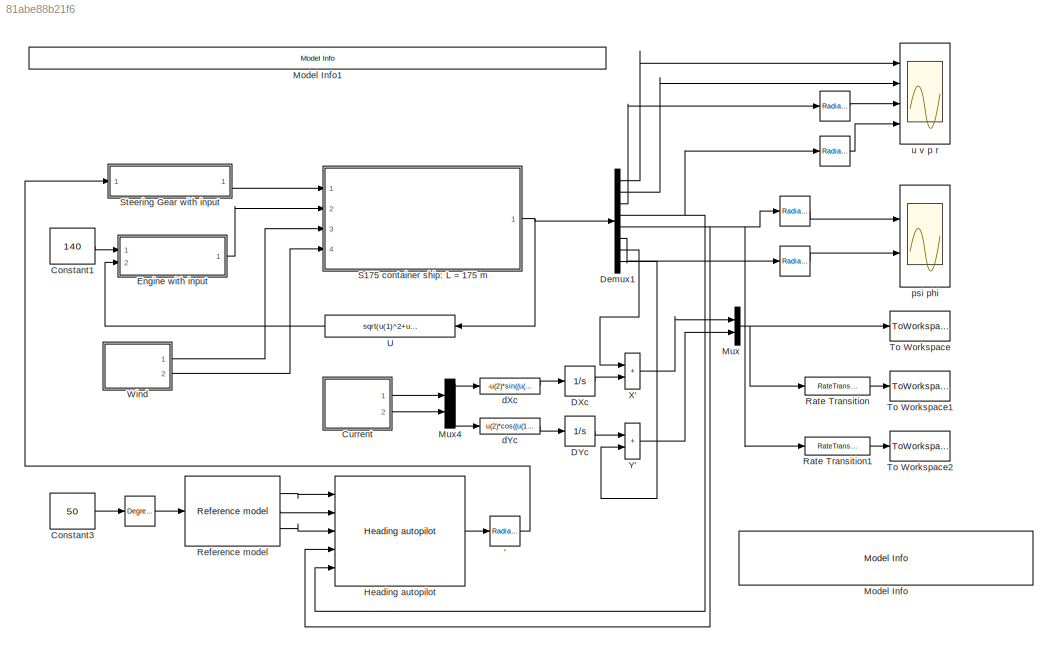
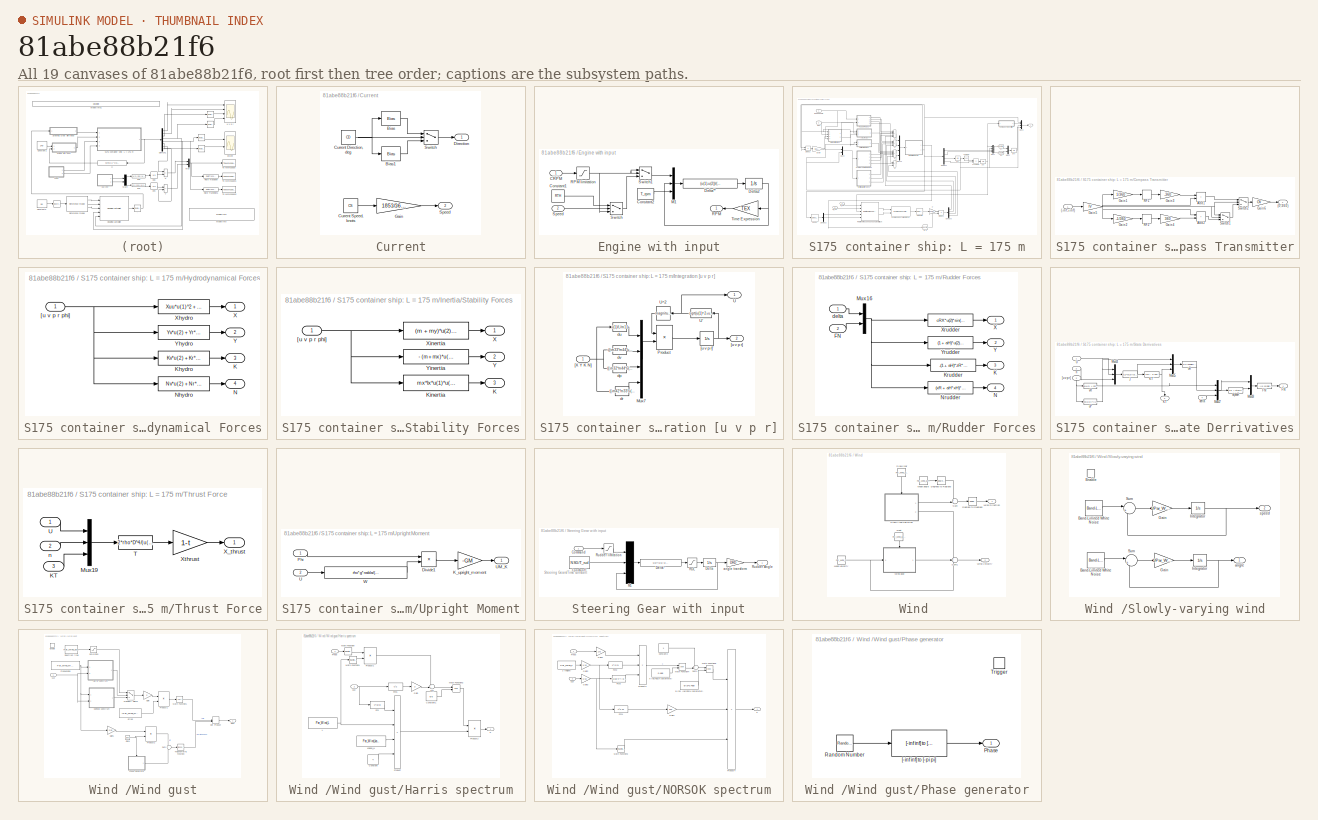
[diagram: thumbnail index - all 19 canvases of the model, root first then tree order]
MODEL slx_81abe88b21f6
KIND model
CONFIG AbsTol = auto
CONFIG EnableMultiTasking = on
CONFIG FixedStep = Auto
CONFIG InitFcn = dataContainer;
CONFIG MaxStep = auto
CONFIG MinStep = auto
CONFIG PreLoadFcn = TT=50;
CONFIG RelTol = 1e-10
CONFIG SampleTimeConstraint = Unconstrained
CONFIG SolverName = ode45
CONFIG StartTime = 0.0
CONFIG StopFcn = shipsOrient;
CONFIG StopTime = 500
BLOCK [Reference]      REF=simulink_extras/Transformations/Radians
to Degrees
  Ports = [1, 1]
  SourceBlock = simulink_extras/Transformations/Radians\nto Degrees
  SourceProductBaseCode = SL
  SourceType = RadiansToDegrees
BLOCK [Reference]       REF=simulink_extras/Transformations/Radians
to Degrees
  Ports = [1, 1]
  SourceBlock = simulink_extras/Transformations/Radians\nto Degrees
  SourceProductBaseCode = SL
  SourceType = RadiansToDegrees
BLOCK [Reference]        REF=simulink_extras/Transformations/Degrees to
Radians
  Ports = [1, 1]
  SourceBlock = simulink_extras/Transformations/Degrees to\nRadians
  SourceProductBaseCode = SL
  SourceType = DegreesToRadians
BLOCK [Reference]         REF=simulink_extras/Transformations/Radians
to Degrees
  Ports = [1, 1]
  SourceBlock = simulink_extras/Transformations/Radians\nto Degrees
  SourceProductBaseCode = SL
  SourceType = RadiansToDegrees
BLOCK [Reference]                   REF=simulink_extras/Transformations/Radians
to Degrees
  Ports = [1, 1]
  SourceBlock = simulink_extras/Transformations/Radians\nto Degrees
  SourceProductBaseCode = SL
  SourceType = RadiansToDegrees
BLOCK [Reference]                '  REF=simulink_extras/Transformations/Radians
to Degrees
  Ports = [1, 1]
  SourceBlock = simulink_extras/Transformations/Radians\nto Degrees
  SourceProductBaseCode = SL
  SourceType = RadiansToDegrees
BLOCK [Constant] Constant1
  Value = 140
BLOCK [Constant] Constant3
  Value = 50
BLOCK [SubSystem] Current
  AncestorBlock = Maneuvering/Environment/Current
  Ports = [0, 2]
  RequestExecContextInheritance = off
BLOCK [Bias] Current/Bias
  Bias = -180
  SaturateOnIntegerOverflow = off
BLOCK [Bias] Current/Bias1
  Bias = 180
  SaturateOnIntegerOverflow = off
BLOCK [Constant] Current/Current Direction, deg
  Value = CD
BLOCK [Constant] Current/Current Speed, knots
  Value = CS
BLOCK [Outport] Current/Direction
BLOCK [Gain] Current/Gain
  Gain = 1853/3600
BLOCK [Outport] Current/Speed
  Port = 2
BLOCK [Switch] Current/Switch
  InputSameDT = off
  SaturateOnIntegerOverflow = off
  Threshold = 180
BLOCK [Integrator] DXc
  Ports = [1, 1]
BLOCK [Integrator] DYc
  Ports = [1, 1]
BLOCK [Demux] Demux1
  Outputs = 8
  Ports = [1, 8]
BLOCK [SubSystem] Engine with input
  Ports = [2, 1]
  RequestExecContextInheritance = off
BLOCK [Inport] Engine with input/CRPM
BLOCK [Constant] Engine with input/Constant1
  Value = RTH
BLOCK [Constant] Engine with input/Constant2
  Value = T_rpm
BLOCK [Fcn] Engine with input/Delta**
  Expr = (u(1)-u(2))/(u(3)*60/u(2))
BLOCK [Integrator] Engine with input/Delta2
  InitialCondition = IRPM
  LimitOutput = on
  LowerSaturationLimit = MinRPM
  Ports = [1, 1]
  UpperSaturationLimit = MaxRPM
BLOCK [Mux] Engine with input/M1
  DisplayOption = bar
  Inputs = 3
  Ports = [3, 1]
BLOCK [Outport] Engine with input/RPM
BLOCK [Saturate] Engine with input/RPM limitation
  LowerLimit = MinRPM
  UpperLimit = MaxRPM
BLOCK [Inport] Engine with input/Speed
  Port = 2
BLOCK [Switch] Engine with input/Switch
  InputSameDT = off
  SaturateOnIntegerOverflow = off
  Threshold = RevV
BLOCK [Switch] Engine with input/Switch1
  InputSameDT = off
  SaturateOnIntegerOverflow = off
BLOCK [Gain] Engine with input/Time Expression
  Gain = TEX
BLOCK [Reference] Heading autopilot   REF=mssSimulink/Control/Autopilots/Heading autopilot
  Ports = [5, 1]
  SourceBlock = mssSimulink/Control/Autopilots/Heading autopilot
  SourceType = Course Autopilot
BLOCK [Reference] Model Info  REF=simulink/Model-Wide
Utilities/Model Info
  Ports = []
  SourceBlock = simulink/Model-Wide\nUtilities/Model Info
  SourceProductBaseCode = SL
  SourceType = CMBlock
BLOCK [Reference] Model Info1  REF=simulink/Model-Wide
Utilities/Model Info
  Ports = []
  SourceBlock = simulink/Model-Wide\nUtilities/Model Info
  SourceProductBaseCode = SL
  SourceType = CMBlock
BLOCK [Mux] Mux
  DisplayOption = bar
  Inputs = 2
  Ports = [2, 1]
BLOCK [Mux] Mux4
  DisplayOption = bar
  Inputs = 2
  Ports = [2, 1]
BLOCK [RateTransition] Rate Transition
  OutPortSampleTime = TT
BLOCK [RateTransition] Rate Transition1
  OutPortSampleTime = TT
BLOCK [Reference] Reference model   REF=mssSimulink/Guidance/Reference model
  Ports = [1, 3]
  SourceBlock = mssSimulink/Guidance/Reference model
  SourceType = 3rd-order reference model
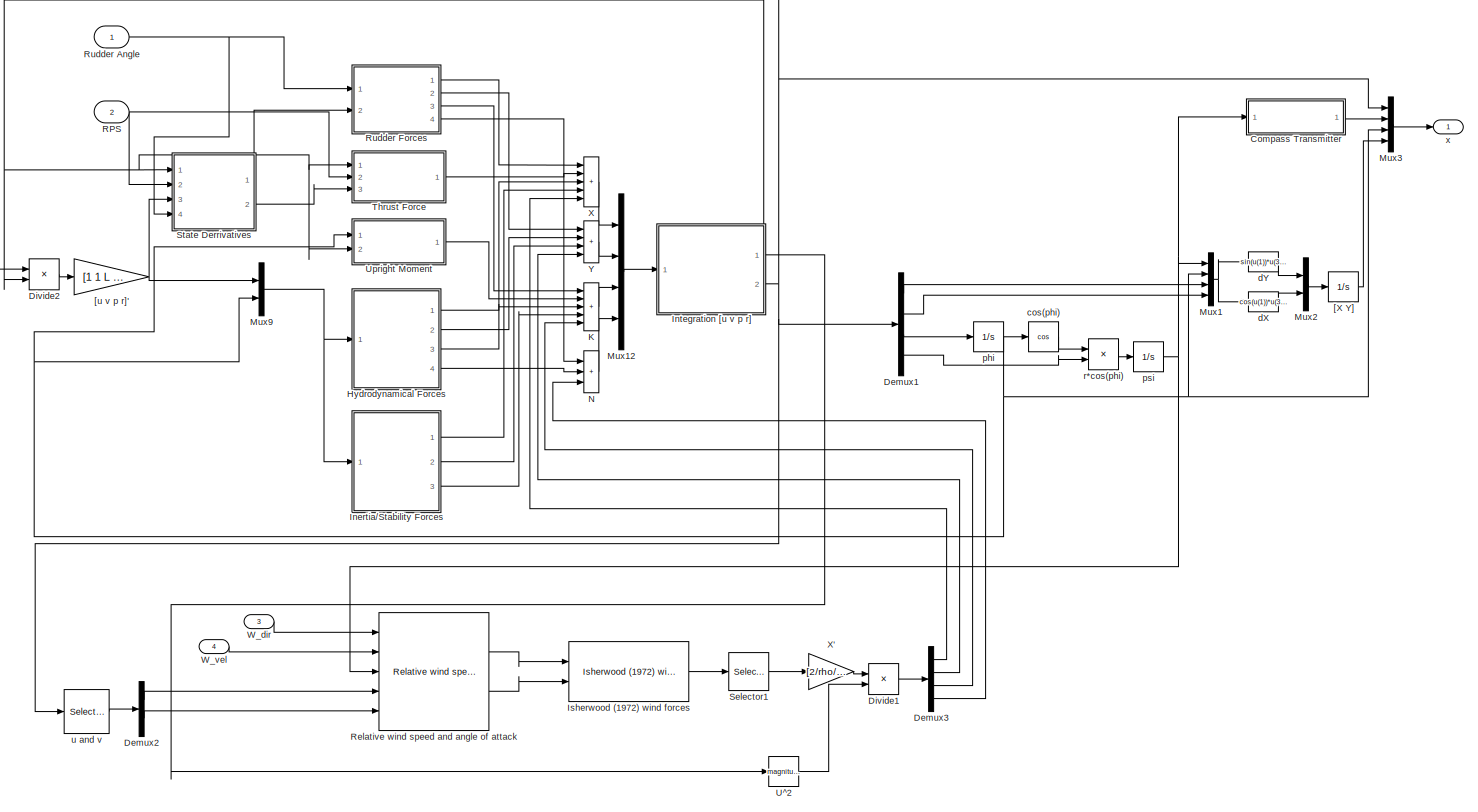
[diagram: S175 container ship: L = 175 m - part 1/1, most of the canvas]
BLOCK [SubSystem] S175 container ship: L = 175 m
  Ports = [4, 1]
  RequestExecContextInheritance = off
BLOCK [SubSystem] S175 container ship: L = 175 m/Compass Transmitter
  Ports = [1, 1]
  RequestExecContextInheritance = off
BLOCK [Inport] S175 container ship: L = 175 m/Compass Transmitter/(-inf;+inf)
BLOCK [Outport] S175 container ship: L = 175 m/Compass Transmitter/(0;360)
BLOCK [Sum] S175 container ship: L = 175 m/Compass Transmitter/Add1
  IconShape = rectangular
  Ports = [2, 1]
BLOCK [Sum] S175 container ship: L = 175 m/Compass Transmitter/Add2
  IconShape = rectangular
  Ports = [2, 1]
BLOCK [Gain] S175 container ship: L = 175 m/Compass Transmitter/Gain1
  Gain = 1/360
BLOCK [Gain] S175 container ship: L = 175 m/Compass Transmitter/Gain2
  Gain = -1/360
BLOCK [Gain] S175 container ship: L = 175 m/Compass Transmitter/Gain3
  Gain = -360
BLOCK [Gain] S175 container ship: L = 175 m/Compass Transmitter/Gain4
  Gain = 360
BLOCK [Gain] S175 container ship: L = 175 m/Compass Transmitter/Gain5
  Gain = IV
BLOCK [Gain] S175 container ship: L = 175 m/Compass Transmitter/Gain6
  Gain = OV
BLOCK [Rounding] S175 container ship: L = 175 m/Compass Transmitter/RF1
BLOCK [Rounding] S175 container ship: L = 175 m/Compass Transmitter/RF2
  Operator = ceil
BLOCK [Switch] S175 container ship: L = 175 m/Compass Transmitter/Switch1
  InputSameDT = off
  SaturateOnIntegerOverflow = off
BLOCK [Switch] S175 container ship: L = 175 m/Compass Transmitter/Switch2
  Criteria = u2 > Threshold
  InputSameDT = off
  SaturateOnIntegerOverflow = off
  Threshold = 360
BLOCK [Demux] S175 container ship: L = 175 m/Demux1
  Ports = [1, 4]
BLOCK [Demux] S175 container ship: L = 175 m/Demux2
  Outputs = 2
  Ports = [1, 2]
BLOCK [Demux] S175 container ship: L = 175 m/Demux3
  Ports = [1, 4]
BLOCK [Product] S175 container ship: L = 175 m/Divide1
  Inputs = */
  Ports = [2, 1]
BLOCK [Product] S175 container ship: L = 175 m/Divide2
  Inputs = */
  Ports = [2, 1]
BLOCK [SubSystem] S175 container ship: L = 175 m/Hydrodynamical Forces
  Ports = [1, 4]
  RequestExecContextInheritance = off
BLOCK [Outport] S175 container ship: L = 175 m/Hydrodynamical Forces/K
  Port = 3
BLOCK [Fcn] S175 container ship: L = 175 m/Hydrodynamical Forces/Khydro
  Expr = Kv*u(2) + Kr*u(4) + Kp*u(3) + Kphi*u(5) + Kvvv*u(2)^3 + Krrr*u(4)^3 + Kvvr*u(2)^2*u(4) + Kvrr*u(2)*u(4)^2 + Kvvphi*u(2)^2*u(5) + Kvphiphi*u(2)*u(5)^2 + Krrphi*u(4)^2*u(5) + Krphiphi*u(4)*u(5)^2
BLOCK [Outport] S175 container ship: L = 175 m/Hydrodynamical Forces/N
  Port = 4
BLOCK [Fcn] S175 container ship: L = 175 m/Hydrodynamical Forces/Nhydro
  Expr = Nv*u(2) + Nr*u(4) + Np*u(3) + Nphi*u(5) + Nvvv*u(2)^3 + Nrrr*u(4)^3 + Nvvr*u(2)^2*u(4) + Nvrr*u(2)*u(4)^2 + Nvvphi*u(2)^2*u(5) + Nvphiphi*u(2)*u(5)^2 + Nrrphi*u(4)^2*u(5) + Nrphiphi*u(4)*u(5)^2
BLOCK [Outport] S175 container ship: L = 175 m/Hydrodynamical Forces/X
BLOCK [Fcn] S175 container ship: L = 175 m/Hydrodynamical Forces/Xhydro
  Expr = Xuu*u(1)^2 +  Xvr*u(2)*u(4) + Xvv*u(2)^2 + Xrr*u(4)^2 + Xphiphi*u(5)^2
BLOCK [Outport] S175 container ship: L = 175 m/Hydrodynamical Forces/Y
  Port = 2
BLOCK [Fcn] S175 container ship: L = 175 m/Hydrodynamical Forces/Yhydro
  Expr = Yv*u(2) + Yr*u(4) + Yp*u(3) + Yphi*u(5) + Yvvv*u(2)^3 + Yrrr*u(4)^3 + Yvvr*u(2)^2*u(4) + Yvrr*u(2)*u(4)^2 + Yvvphi*u(2)^2*u(5) + Yvphiphi*u(2)*u(5)^2 + Yrrphi*u(4)^2*u(5) + Yrphiphi*u(4)*u(5)^2
BLOCK [Inport] S175 container ship: L = 175 m/Hydrodynamical Forces/[u v p r phi]
BLOCK [SubSystem] S175 container ship: L = 175 m/Inertia//Stability Forces
  Ports = [1, 3]
  RequestExecContextInheritance = off
BLOCK [Outport] S175 container ship: L = 175 m/Inertia//Stability Forces/K
  Port = 3
BLOCK [Fcn] S175 container ship: L = 175 m/Inertia//Stability Forces/Kinertia
  Expr = mx*lx*u(1)*u(4)
BLOCK [Outport] S175 container ship: L = 175 m/Inertia//Stability Forces/X
BLOCK [Fcn] S175 container ship: L = 175 m/Inertia//Stability Forces/Xinertia
  Expr = (m + my)*u(2)*u(4)
BLOCK [Outport] S175 container ship: L = 175 m/Inertia//Stability Forces/Y
  Port = 2
BLOCK [Fcn] S175 container ship: L = 175 m/Inertia//Stability Forces/Yinertia
  Expr = - (m + mx)*u(1)*u(4)
BLOCK [Inport] S175 container ship: L = 175 m/Inertia//Stability Forces/[u v p r phi]
BLOCK [SubSystem] S175 container ship: L = 175 m/Integration [u v p r]
  Ports = [1, 2]
  RequestExecContextInheritance = off
BLOCK [Mux] S175 container ship: L = 175 m/Integration [u v p r]/Mux7
  DisplayOption = bar
  Ports = [4, 1]
BLOCK [Product] S175 container ship: L = 175 m/Integration [u v p r]/Product
  Inputs = **
  Ports = [2, 1]
BLOCK [Outport] S175 container ship: L = 175 m/Integration [u v p r]/U
BLOCK [Fcn] S175 container ship: L = 175 m/Integration [u v p r]/U'
  Expr = sqrt(u(1)^2+u(2)^2)
  NameLocation = top
BLOCK [Math] S175 container ship: L = 175 m/Integration [u v p r]/U^2
  NameLocation = top
  Operator = magnitude^2
  Ports = [1, 1]
  SignedPower = on
BLOCK [Inport] S175 container ship: L = 175 m/Integration [u v p r]/[X Y K N]
BLOCK [Outport] S175 container ship: L = 175 m/Integration [u v p r]/[u v p r]
  Port = 2
BLOCK [Integrator] S175 container ship: L = 175 m/Integration [u v p r]/[u v p r]'
  InitialCondition = [IC(1:4)]
  Ports = [1, 1]
BLOCK [Fcn] S175 container ship: L = 175 m/Integration [u v p r]/dp
  Expr = ((-m32*m44*u(2)+u(3)*m22*m44-u(3)*m42^2+m32*m42*u(4))/detM)/L^2
BLOCK [Fcn] S175 container ship: L = 175 m/Integration [u v p r]/dr
  Expr = ((-m42*m33*u(2)+m32*m42*u(3)+u(4)*m22*m33-u(4)*m32^2)/detM)/L^2
BLOCK [Fcn] S175 container ship: L = 175 m/Integration [u v p r]/du
  Expr = u(1)/L/m11
BLOCK [Fcn] S175 container ship: L = 175 m/Integration [u v p r]/dv
  Expr = -((-m33*m44*u(2)+m32*m44*u(3)+m42*m33*u(4))/detM)/L
BLOCK [Reference] S175 container ship: L = 175 m/Isherwood (1972) wind forces    REF=mssSimulink/Environment/Wind/Isherwood (1972) wind forces
  Ports = [2, 1]
  SourceBlock = mssSimulink/Environment/Wind/Isherwood (1972) wind forces
  SourceType = Isherwood wind forces
BLOCK [Sum] S175 container ship: L = 175 m/K
  IconShape = rectangular
  Inputs = +++++
  Ports = [5, 1]
BLOCK [Mux] S175 container ship: L = 175 m/Mux1
  DisplayOption = bar
  Ports = [4, 1]
BLOCK [Mux] S175 container ship: L = 175 m/Mux12
  DisplayOption = bar
  Ports = [4, 1]
BLOCK [Mux] S175 container ship: L = 175 m/Mux2
  DisplayOption = bar
  Inputs = 2
  Ports = [2, 1]
BLOCK [Mux] S175 container ship: L = 175 m/Mux3
  DisplayOption = bar
  Ports = [4, 1]
BLOCK [Mux] S175 container ship: L = 175 m/Mux9
  DisplayOption = bar
  Inputs = 2
  Ports = [2, 1]
BLOCK [Sum] S175 container ship: L = 175 m/N
  IconShape = rectangular
  Inputs = +++
  Ports = [3, 1]
BLOCK [Inport] S175 container ship: L = 175 m/RPS
  Port = 2
BLOCK [Reference] S175 container ship: L = 175 m/Relative wind speed and angle of attack   REF=mssSimulink/Environment/Wind/Relative wind speed and angle of attack
  Ports = [5, 2]
  SourceBlock = mssSimulink/Environment/Wind/Relative wind speed and angle of attack
  SourceType = SubSystem
BLOCK [Inport] S175 container ship: L = 175 m/Rudder Angle
BLOCK [SubSystem] S175 container ship: L = 175 m/Rudder Forces
  Ports = [2, 4]
  RequestExecContextInheritance = off
BLOCK [Inport] S175 container ship: L = 175 m/Rudder Forces/FN
  Port = 2
BLOCK [Outport] S175 container ship: L = 175 m/Rudder Forces/K
  Port = 3
BLOCK [Fcn] S175 container ship: L = 175 m/Rudder Forces/Krudder
  Expr = -(1 + aH)*zR*u(2)*cos(u(1))
BLOCK [Mux] S175 container ship: L = 175 m/Rudder Forces/Mux16
  DisplayOption = bar
  Inputs = 2
  Ports = [2, 1]
BLOCK [Outport] S175 container ship: L = 175 m/Rudder Forces/N
  Port = 4
BLOCK [Fcn] S175 container ship: L = 175 m/Rudder Forces/Nrudder
  Expr = (xR + aH*xH)*u(2)*cos(u(1))
BLOCK [Outport] S175 container ship: L = 175 m/Rudder Forces/X
BLOCK [Fcn] S175 container ship: L = 175 m/Rudder Forces/Xrudder
  Expr = cRX*u(2)*sin(u(1))
BLOCK [Outport] S175 container ship: L = 175 m/Rudder Forces/Y
  Port = 2
BLOCK [Fcn] S175 container ship: L = 175 m/Rudder Forces/Yrudder
  Expr = (1 + aH)*u(2)*cos(u(1))
BLOCK [Inport] S175 container ship: L = 175 m/Rudder Forces/delta
BLOCK [Selector] S175 container ship: L = 175 m/Selector1
  IndexOptions = Index vector (dialog)
  Indices = [1 2 4 6]
  InputPortWidth = 6
  OutputSizes = 1
  Ports = [1, 1]
BLOCK [SubSystem] S175 container ship: L = 175 m/State Derrivatives
  Ports = [4, 2]
  RequestExecContextInheritance = off
BLOCK [Outport] S175 container ship: L = 175 m/State Derrivatives/FN
BLOCK [Fcn] S175 container ship: L = 175 m/State Derrivatives/FN'
  Expr = - ((6.13*Delta)/(Delta + 2.25))*(AR/L^2)*(u(1)^2 + u(2)^2)*sin(u(4))
BLOCK [Fcn] S175 container ship: L = 175 m/State Derrivatives/J
  Expr = u(1)*u(2)/(u(3)*D)
BLOCK [Outport] S175 container ship: L = 175 m/State Derrivatives/KT
  NameLocation = right
  Port = 2
BLOCK [Fcn] S175 container ship: L = 175 m/State Derrivatives/KT'
  Expr = 0.527 - 0.455*u
BLOCK [Mux] S175 container ship: L = 175 m/State Derrivatives/Mux14
  DisplayOption = bar
  Inputs = 3
  Ports = [3, 1]
BLOCK [Mux] S175 container ship: L = 175 m/State Derrivatives/Mux15
  DisplayOption = bar
  Inputs = 3
  Ports = [3, 1]
BLOCK [Mux] S175 container ship: L = 175 m/State Derrivatives/Mux17
  DisplayOption = bar
  Inputs = 3
  Ports = [3, 1]
BLOCK [Mux] S175 container ship: L = 175 m/State Derrivatives/Mux18
  DisplayOption = bar
  Inputs = 2
  Ports = [2, 1]
BLOCK [Inport] S175 container ship: L = 175 m/State Derrivatives/U
BLOCK [Inport] S175 container ship: L = 175 m/State Derrivatives/[u v p r]
  NameLocation = right
  Port = 3
BLOCK [Fcn] S175 container ship: L = 175 m/State Derrivatives/alphaR
  Expr = u(3) + atan(u(1)/u(2))
BLOCK [Inport] S175 container ship: L = 175 m/State Derrivatives/delta
  Port = 4
BLOCK [Inport] S175 container ship: L = 175 m/State Derrivatives/n
  Port = 2
BLOCK [Fcn] S175 container ship: L = 175 m/State Derrivatives/uP
  Expr = cos(u(2))*((1 - wp) + tau*((u(2) + xp*u(4))^2 + cpv*u(2) + cpr*u(4)))
BLOCK [Fcn] S175 container ship: L = 175 m/State Derrivatives/uR
  Expr = u(1)*epsilon*sqrt(1 + 8*kk*u(3)/(pi*u(2)^2))
BLOCK [Fcn] S175 container ship: L = 175 m/State Derrivatives/vR
  Expr = ga*u(2) + cRr*u(4) + cRrrr*u(4)^3 + cRrrv*u(4)^2*u(2)
BLOCK [SubSystem] S175 container ship: L = 175 m/Thrust Force
  Ports = [3, 1]
  RequestExecContextInheritance = off
BLOCK [Inport] S175 container ship: L = 175 m/Thrust Force/KT
  Port = 3
BLOCK [Mux] S175 container ship: L = 175 m/Thrust Force/Mux19
  DisplayOption = bar
  Inputs = 3
  Ports = [3, 1]
BLOCK [Fcn] S175 container ship: L = 175 m/Thrust Force/T
  Expr = 2*rho*D^4/(u(1)^2*L^2*rho)*u(3)*u(2)*abs(u(2))
BLOCK [Inport] S175 container ship: L = 175 m/Thrust Force/U
BLOCK [Outport] S175 container ship: L = 175 m/Thrust Force/X_thrust
BLOCK [Gain] S175 container ship: L = 175 m/Thrust Force/Xthrust
  Gain = 1-t
BLOCK [Inport] S175 container ship: L = 175 m/Thrust Force/n
  Port = 2
BLOCK [Math] S175 container ship: L = 175 m/U^2
  Operator = magnitude^2
  Ports = [1, 1]
  SignedPower = on
BLOCK [SubSystem] S175 container ship: L = 175 m/Upright Moment
  Ports = [2, 1]
  RequestExecContextInheritance = off
BLOCK [Product] S175 container ship: L = 175 m/Upright Moment/Divide1
  Inputs = **
  Ports = [2, 1]
BLOCK [Gain] S175 container ship: L = 175 m/Upright Moment/K_upright_moment
  Gain = -GM
BLOCK [Inport] S175 container ship: L = 175 m/Upright Moment/Phi
BLOCK [Inport] S175 container ship: L = 175 m/Upright Moment/U
  Port = 2
BLOCK [Outport] S175 container ship: L = 175 m/Upright Moment/UM_K
BLOCK [Fcn] S175 container ship: L = 175 m/Upright Moment/W
  Expr = rho*g*nabla/(rho*L^2*u^2/2)
BLOCK [Inport] S175 container ship: L = 175 m/W_dir
  Port = 3
BLOCK [Inport] S175 container ship: L = 175 m/W_vel
  Port = 4
BLOCK [Sum] S175 container ship: L = 175 m/X
  IconShape = rectangular
  Inputs = +++++
  Ports = [5, 1]
BLOCK [Gain] S175 container ship: L = 175 m/X'
  Gain = [2/rho/L^2 2/rho/L^2 2/rho/L^3 2/rho/L^3]
BLOCK [Sum] S175 container ship: L = 175 m/Y
  IconShape = rectangular
  Inputs = ++++
  Ports = [4, 1]
BLOCK [Integrator] S175 container ship: L = 175 m/[X Y]
  InitialCondition = [IC(7) IC(8)]
  Ports = [1, 1]
BLOCK [Gain] S175 container ship: L = 175 m/[u v p r]'
  Gain = [1 1 L L]
BLOCK [Trigonometry] S175 container ship: L = 175 m/cos(phi)
  Operator = cos
  Ports = [1, 1]
BLOCK [Fcn] S175 container ship: L = 175 m/dX
  Expr = cos(u(1))*u(3)-sin(u(1))*cos(u(2))*u(4)
BLOCK [Fcn] S175 container ship: L = 175 m/dY
  Expr = sin(u(1))*u(3)-cos(u(1))*cos(u(2))*u(4)
BLOCK [Integrator] S175 container ship: L = 175 m/phi
  InitialCondition = IC(6)
  Ports = [1, 1]
BLOCK [Integrator] S175 container ship: L = 175 m/psi
  InitialCondition = IC(5)
  Ports = [1, 1]
BLOCK [Product] S175 container ship: L = 175 m/r*cos(phi)
  Inputs = **
  Ports = [2, 1]
BLOCK [Selector] S175 container ship: L = 175 m/u and v
  IndexOptions = Index vector (dialog)
  Indices = [1 2]
  InputPortWidth = 4
  OutputSizes = 1
  Ports = [1, 1]
BLOCK [Outport] S175 container ship: L = 175 m/x
BLOCK [SubSystem] Steering Gear with input
  Ports = [1, 1]
  RequestExecContextInheritance = off
BLOCK [Inport] Steering Gear with input/Command
BLOCK [Constant] Steering Gear with input/Constant1
  Value = NSG/T_rud
BLOCK [Integrator] Steering Gear with input/Delta
  InitialCondition = IRud
  LimitOutput = on
  LowerSaturationLimit = -MR
  Ports = [1, 1]
  UpperSaturationLimit = MR
BLOCK [Fcn] Steering Gear with input/Delta*
  Expr = u(2)*(u(1)-u(3))
  SampleTime = ST
BLOCK [Mux] Steering Gear with input/M1
  DisplayOption = bar
  Inputs = 3
  Ports = [3, 1]
BLOCK [Saturate] Steering Gear with input/RDL
  LowerLimit = -MRS
  SampleTime = ST
  UpperLimit = MRS
BLOCK [Outport] Steering Gear with input/Rudder Angle
BLOCK [Saturate] Steering Gear with input/Rudder limitation
  LowerLimit = -MR
  SampleTime = ST
  UpperLimit = MR
BLOCK [Gain] Steering Gear with input/angle transform
  Gain = DRD
  SampleTime = ST
BLOCK [ToWorkspace] To Workspace
  MaxDataPoints = inf
  Ports = [1]
  SampleTime = -1
  VariableName = XY
BLOCK [ToWorkspace] To Workspace1
  MaxDataPoints = inf
  Ports = [1]
  SampleTime = TT
  VariableName = XY1
BLOCK [ToWorkspace] To Workspace2
  MaxDataPoints = inf
  Ports = [1]
  SampleTime = TT
  VariableName = K
BLOCK [Fcn] U
  Expr = sqrt(u(1)^2+u(2)^2)
  NameLocation = top
BLOCK [SubSystem] Wind 
  Ports = [0, 2]
  RequestExecContextInheritance = off
BLOCK [Reference] Wind /Degrees to Radians  REF=simulink_extras/Transformations/Degrees to
Radians
  Ports = [1, 1]
  SourceBlock = simulink_extras/Transformations/Degrees to\nRadians
  SourceProductBaseCode = SL
  SourceType = DegreesToRadians
BLOCK [Constant] Wind /Gust
  NameLocation = left
  Value = Par_Wind_gust
BLOCK [Constant] Wind /Mean angle
  Value = Par_Wind_angle
BLOCK [Constant] Wind /Mean velocity
  Value = Par_Wind_V
BLOCK [Reference] Wind /Radians to Degrees  REF=simulink_extras/Transformations/Radians
to Degrees
  Ports = [1, 1]
  SourceBlock = simulink_extras/Transformations/Radians\nto Degrees
  SourceProductBaseCode = SL
  SourceType = RadiansToDegrees
BLOCK [SubSystem] Wind /Slowly-varying wind
  Ports = [0, 2, 1]
  RequestExecContextInheritance = off
BLOCK [Reference] Wind /Slowly-varying wind/Band-Limited White Noise  REF=simulink/Sources/Band-Limited
White Noise
  Ports = [0, 1]
  SourceBlock = simulink/Sources/Band-Limited\nWhite Noise
  SourceProductBaseCode = SL
  SourceType = Band-Limited White Noise.
BLOCK [Reference] Wind /Slowly-varying wind/Band-Limited White Noise   REF=simulink/Sources/Band-Limited
White Noise
  Ports = [0, 1]
  SourceBlock = simulink/Sources/Band-Limited\nWhite Noise
  SourceProductBaseCode = SL
  SourceType = Band-Limited White Noise.
BLOCK [EnablePort] Wind /Slowly-varying wind/Enable
  Ports = []
BLOCK [Gain] Wind /Slowly-varying wind/Gain
  Gain = 1/Par_Wind_speed_T
  OutDataTypeStr = Inherit: Same as input
  ParamDataTypeStr = Inherit: Same as input
  SaturateOnIntegerOverflow = on
BLOCK [Gain] Wind /Slowly-varying wind/Gain 
  Gain = 1/Par_Wind_angle_T
  OutDataTypeStr = Inherit: Same as input
  ParamDataTypeStr = Inherit: Same as input
  SaturateOnIntegerOverflow = on
BLOCK [Integrator] Wind /Slowly-varying wind/Integrator
  LimitOutput = on
  LowerSaturationLimit = -Par_Wind_speed_rand_max
  Ports = [1, 1]
  UpperSaturationLimit = Par_Wind_speed_rand_max
BLOCK [Integrator] Wind /Slowly-varying wind/Integrator 
  LimitOutput = on
  LowerSaturationLimit = -Par_Wind_angle_rand_max
  Ports = [1, 1]
  UpperSaturationLimit = Par_Wind_angle_rand_max
BLOCK [Sum] Wind /Slowly-varying wind/Sum
  InputSameDT = on
  Inputs = |+-
  NameLocation = top
  OutDataTypeStr = Inherit: Same as first input
  Ports = [2, 1]
  SaturateOnIntegerOverflow = on
BLOCK [Sum] Wind /Slowly-varying wind/Sum       
  InputSameDT = on
  Inputs = |+-
  NameLocation = top
  OutDataTypeStr = Inherit: Same as first input
  Ports = [2, 1]
  SaturateOnIntegerOverflow = on
BLOCK [Outport] Wind /Slowly-varying wind/angle
  InitialOutput = 0
BLOCK [Outport] Wind /Slowly-varying wind/speed
  InitialOutput = 0
  Port = 2
BLOCK [Constant] Wind /Slowlyvar
  NameLocation = left
  Value = Par_Wind_slowlyvar
BLOCK [Sum] Wind /Sum
  Inputs = ++|
  Ports = [2, 1]
  SaturateOnIntegerOverflow = on
BLOCK [Sum] Wind /Sum1
  Inputs = +++
  Ports = [3, 1]
  SaturateOnIntegerOverflow = on
BLOCK [Outport] Wind /Wind Direction
BLOCK [Outport] Wind /Wind Velocity
  Port = 2
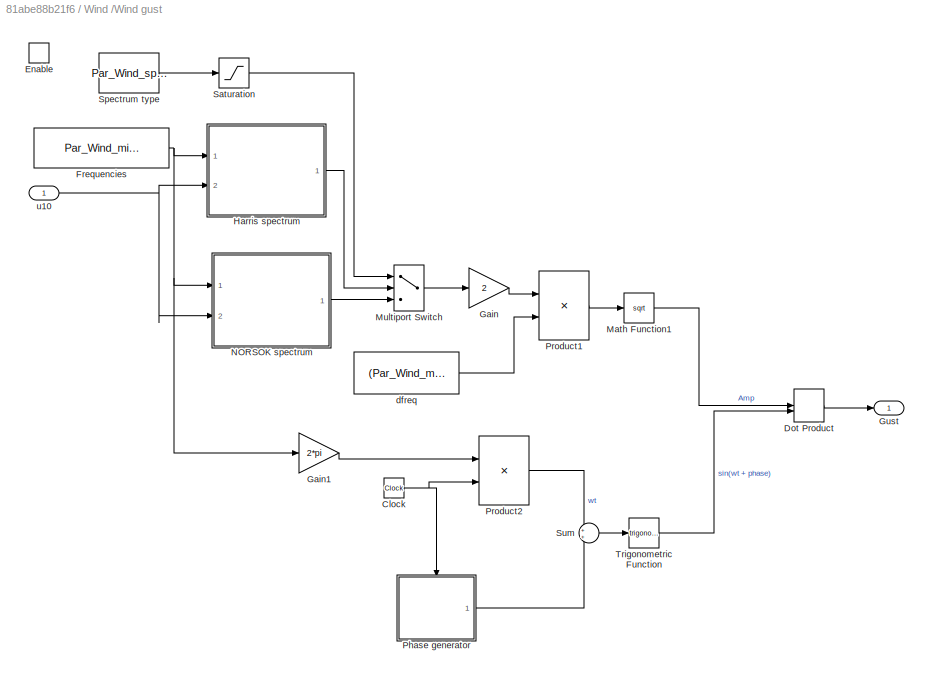
BLOCK [SubSystem] Wind /Wind gust
  Ports = [1, 1, 1]
  RequestExecContextInheritance = off
BLOCK [Clock] Wind /Wind gust/Clock
BLOCK [DotProduct] Wind /Wind gust/Dot Product
  OutDataTypeStr = Inherit: Inherit via internal rule
BLOCK [EnablePort] Wind /Wind gust/Enable
  Ports = []
BLOCK [Constant] Wind /Wind gust/Frequencies
  Value = Par_Wind_minfreq:(Par_Wind_maxfreq - Par_Wind_minfreq)/(Par_Wind_nfreq-1):Par_Wind_maxfreq
BLOCK [Gain] Wind /Wind gust/Gain
  Gain = 2
  OutDataTypeStr = Inherit: Same as input
  ParamDataTypeStr = Inherit: Same as input
  SaturateOnIntegerOverflow = on
BLOCK [Gain] Wind /Wind gust/Gain1
  Gain = 2*pi
  OutDataTypeStr = Inherit: Same as input
  ParamDataTypeStr = Inherit: Same as input
  SaturateOnIntegerOverflow = on
BLOCK [Outport] Wind /Wind gust/Gust
  InitialOutput = 0
BLOCK [SubSystem] Wind /Wind gust/Harris spectrum
  Ports = [2, 1]
  RequestExecContextInheritance = off
BLOCK [Constant] Wind /Wind gust/Harris spectrum/Constant
  Value = 4
BLOCK [Constant] Wind /Wind gust/Harris spectrum/Constant1
  Value = 5/6
BLOCK [Fcn] Wind /Wind gust/Harris spectrum/Fcn
  Expr = u^(8/3)
BLOCK [Fcn] Wind /Wind gust/Harris spectrum/Fcn1
  Expr = u^2
BLOCK [Inport] Wind /Wind gust/Harris spectrum/Freqs
BLOCK [Gain] Wind /Wind gust/Harris spectrum/Gain
  Gain = 2
  OutDataTypeStr = Inherit: Same as input
  ParamDataTypeStr = Inherit: Same as input
  SaturateOnIntegerOverflow = on
BLOCK [Constant] Wind /Wind gust/Harris spectrum/L
  Value = Par_Wind_L
BLOCK [Math] Wind /Wind gust/Harris spectrum/Math Function
  NameLocation = top
  Operator = magnitude^2
  Ports = [1, 1]
  SignedPower = on
BLOCK [Math] Wind /Wind gust/Harris spectrum/Math Function1
  Operator = magnitude^2
  Ports = [1, 1]
  SignedPower = on
BLOCK [Math] Wind /Wind gust/Harris spectrum/Math Function2
  Operator = pow
  Ports = [2, 1]
  SignedPower = on
BLOCK [Product] Wind /Wind gust/Harris spectrum/Product
  Inputs = 4
  OutDataTypeStr = Inherit: Same as first input
  Ports = [4, 1]
  SaturateOnIntegerOverflow = on
BLOCK [Product] Wind /Wind gust/Harris spectrum/Product1
  OutDataTypeStr = Inherit: Same as first input
  Ports = [2, 1]
  SaturateOnIntegerOverflow = on
BLOCK [Product] Wind /Wind gust/Harris spectrum/Product2
  Inputs = /*
  OutDataTypeStr = Inherit: Same as first input
  Ports = [2, 1]
  SaturateOnIntegerOverflow = on
BLOCK [Outport] Wind /Wind gust/Harris spectrum/S
BLOCK [Sum] Wind /Wind gust/Harris spectrum/Sum
  Inputs = ++|
  Ports = [2, 1]
  SaturateOnIntegerOverflow = on
BLOCK [Constant] Wind /Wind gust/Harris spectrum/kappa_H
  Value = Par_Wind_kappa_H
BLOCK [Inport] Wind /Wind gust/Harris spectrum/u10
  Port = 2
BLOCK [Math] Wind /Wind gust/Math Function1
  Operator = sqrt
  Ports = [1, 1]
  SignedPower = on
BLOCK [MultiPortSwitch] Wind /Wind gust/Multiport Switch
  InputSameDT = off
  Inputs = 2
  Ports = [3, 1]
  RndMeth = Nearest
BLOCK [SubSystem] Wind /Wind gust/NORSOK spectrum
  Ports = [2, 1]
  RequestExecContextInheritance = off
BLOCK [Constant] Wind /Wind gust/NORSOK spectrum/5//(3n) (NORSOK parameter)
  Value = 5/(3*0.468)
BLOCK [Constant] Wind /Wind gust/NORSOK spectrum/Constant2
BLOCK [Fcn] Wind /Wind gust/NORSOK spectrum/Fcn2
  Expr = u^(2/3)
  NameLocation = top
BLOCK [Fcn] Wind /Wind gust/NORSOK spectrum/Fcn3
  Expr = (u+1E-4)^(-3/4)
BLOCK [Fcn] Wind /Wind gust/NORSOK spectrum/Fcn4
  Expr = u^0.45
  NameLocation = top
BLOCK [Inport] Wind /Wind gust/NORSOK spectrum/Freqs
BLOCK [Gain] Wind /Wind gust/NORSOK spectrum/Gain1
  Gain = 172
  OutDataTypeStr = Inherit: Same as input
  ParamDataTypeStr = Inherit: Same as input
  SaturateOnIntegerOverflow = on
BLOCK [Gain] Wind /Wind gust/NORSOK spectrum/Gain2
  Gain = 1/10
  OutDataTypeStr = Inherit: Same as input
  ParamDataTypeStr = Inherit: Same as input
  SaturateOnIntegerOverflow = on
BLOCK [Gain] Wind /Wind gust/NORSOK spectrum/Gain3
  Gain = 1/10
  OutDataTypeStr = Inherit: Same as input
  ParamDataTypeStr = Inherit: Same as input
  SaturateOnIntegerOverflow = on
BLOCK [Gain] Wind /Wind gust/NORSOK spectrum/Gain4
  Gain = 320
  OutDataTypeStr = Inherit: Same as input
  ParamDataTypeStr = Inherit: Same as input
  SaturateOnIntegerOverflow = on
BLOCK [Math] Wind /Wind gust/NORSOK spectrum/Math Function3
  NameLocation = top
  Operator = magnitude^2
  Ports = [1, 1]
  SignedPower = on
BLOCK [Math] Wind /Wind gust/NORSOK spectrum/Math Function4
  Operator = pow
  Ports = [2, 1]
  SignedPower = on
BLOCK [Math] Wind /Wind gust/NORSOK spectrum/Math Function5
  Operator = pow
  Ports = [2, 1]
  SignedPower = on
BLOCK [Product] Wind /Wind gust/NORSOK spectrum/Product3
  Inputs = 3
  OutDataTypeStr = Inherit: Same as first input
  Ports = [3, 1]
  SaturateOnIntegerOverflow = on
BLOCK [Product] Wind /Wind gust/NORSOK spectrum/Product4
  Inputs = /**
  OutDataTypeStr = Inherit: Same as first input
  Ports = [3, 1]
  SaturateOnIntegerOverflow = on
BLOCK [Outport] Wind /Wind gust/NORSOK spectrum/S
BLOCK [Sum] Wind /Wind gust/NORSOK spectrum/Sum1
  Inputs = ++|
  Ports = [2, 1]
  SaturateOnIntegerOverflow = on
BLOCK [Constant] Wind /Wind gust/NORSOK spectrum/n (NORSOK parameter)
  Value = 0.468
BLOCK [Inport] Wind /Wind gust/NORSOK spectrum/u10
  Port = 2
BLOCK [Constant] Wind /Wind gust/NORSOK spectrum/z (height)
  Value = Par_Wind_z
BLOCK [SubSystem] Wind /Wind gust/Phase generator
  Ports = [0, 1, 0, 1]
  RequestExecContextInheritance = off
BLOCK [Outport] Wind /Wind gust/Phase generator/Phase
BLOCK [RandomNumber] Wind /Wind gust/Phase generator/Random Number
  Seed = Par_Wind_phase_seed*[1:Par_Wind_nfreq]
  Variance = 3
BLOCK [TriggerPort] Wind /Wind gust/Phase generator/Trigger
  Ports = []
  StatesWhenEnabling = held
  VariantControl = (inherit)
BLOCK [Reference] Wind /Wind gust/Phase generator/[-inf inf] to [-pi pi]   REF=mssSimulink/Utilities/Math Operations/[-inf inf] to [-pi pi]
  Ports = [1, 1]
  SourceBlock = mssSimulink/Utilities/Math Operations/[-inf inf] to [-pi pi]
  SourceType = [-inf inf] to [-pi pi]
BLOCK [Product] Wind /Wind gust/Product1
  OutDataTypeStr = Inherit: Same as first input
  Ports = [2, 1]
  SaturateOnIntegerOverflow = on
BLOCK [Product] Wind /Wind gust/Product2
  OutDataTypeStr = Inherit: Same as first input
  Ports = [2, 1]
  SaturateOnIntegerOverflow = on
BLOCK [Saturate] Wind /Wind gust/Saturation
  LowerLimit = 1
  UpperLimit = 2
BLOCK [Constant] Wind /Wind gust/Spectrum type
  Value = Par_Wind_spectrum_type
BLOCK [Sum] Wind /Wind gust/Sum
  Ports = [2, 1]
  SaturateOnIntegerOverflow = on
BLOCK [Trigonometry] Wind /Wind gust/Trigonometric Function
  Ports = [1, 1]
BLOCK [Constant] Wind /Wind gust/dfreq
  Value = (Par_Wind_maxfreq - Par_Wind_minfreq)/(Par_Wind_nfreq -1)
BLOCK [Inport] Wind /Wind gust/u10
BLOCK [Sum] X'
  IconShape = rectangular
  Ports = [2, 1]
  SampleTime = 1
BLOCK [Sum] Y'
  IconShape = rectangular
  Ports = [2, 1]
  SampleTime = 1
BLOCK [Fcn] dXc
  Expr = -u(2)*sin((u(1)+u(2))*pi/180)
BLOCK [Fcn] dYc
  Expr = u(2)*cos((u(1)+u(2))*pi/180)
BLOCK [Scope] psi phi
  Floating = off
  NumInputPorts = 2
  Ports = [2]
  ScopeSpecificationString = Simulink.scopes.TimeScopeBlockCfg('CurrentConfiguration', extmgr.ConfigurationSet(extmgr.Configuration('Core','General UI',true),extmgr.Configuration('Core','Source UI',true),extmgr.Configuration('Sources','WiredSimulink',true,'DataLoggingSaveFormat','StructureWithTime','DataLoggingDecimation','1','DataLoggingDecimateData',true),extmgr.Configuration('Visuals','Time Domain',true,'SerializedDisplays...<+2220ch>
BLOCK [Scope] u v p r
  Floating = off
  NumInputPorts = 4
  Ports = [4]
  ScopeSpecificationString = Simulink.scopes.TimeScopeBlockCfg('CurrentConfiguration', extmgr.ConfigurationSet(extmgr.Configuration('Core','General UI',true),extmgr.Configuration('Core','Source UI',true),extmgr.Configuration('Sources','WiredSimulink',true,'DataLoggingVariableName','ScopeData1','DataLoggingSaveFormat','StructureWithTime','DataLoggingDecimation','1','DataLoggingDecimateData',true),extmgr.Configuration('Visuals'...<+3644ch>
ANNOTATION Steering Gear with input: Steering Gears/Time constant
LINE                 :1 -> psi phi:2
LINE                ':1 -> Steering Gear with input:1
LINE       :1 -> u v p r:4
LINE      :1 -> Reference model :1
LINE     :1 -> u v p r:3
LINE    :1 -> psi phi:1
LINE Constant1:1 -> Engine with input:1
LINE Constant3:1 ->      :1
LINE Current:1 -> Mux4:1
LINE Current:2 -> Mux4:2
LINE DXc:1 -> X':2
LINE DYc:1 -> Y':1
LINE Demux1:1 -> u v p r:1
LINE Demux1:2 -> u v p r:2
LINE Demux1:3 ->     :1
NET Demux1:4 ->       :1, Heading autopilot :5
NET Demux1:5 ->    :1, Heading autopilot :4, Rate Transition1:1
LINE Demux1:6 ->                 :1
LINE Demux1:7 -> X':1
LINE Demux1:8 -> Y':2
LINE Engine with input/CRPM:1 -> Engine with input/RPM limitation:1
LINE Engine with input/Constant1:1 -> Engine with input/Switch:1
LINE Engine with input/Constant2:1 -> Engine with input/M1:3
LINE Engine with input/Delta**:1 -> Engine with input/Delta2:1
NET Engine with input/Delta2:1 -> Engine with input/M1:2, Engine with input/Time Expression:1
LINE Engine with input/M1:1 -> Engine with input/Delta**:1
NET Engine with input/RPM limitation:1 -> Engine with input/Switch1:1, Engine with input/Switch1:2, Engine with input/Switch:3
LINE Engine with input/Speed:1 -> Engine with input/Switch:2
LINE Engine with input/Switch1:1 -> Engine with input/M1:1
LINE Engine with input/Switch:1 -> Engine with input/Switch1:3
LINE Engine with input/Time Expression:1 -> Engine with input/RPM:1
LINE Engine with input:1 -> S175 container ship: L = 175 m:2
LINE Heading autopilot :1 ->                ':1
NET Mux4:1 -> dXc:1, dYc:1
NET Mux:1 -> Rate Transition:1, To Workspace:1
LINE Rate Transition1:1 -> To Workspace2:1
LINE Rate Transition:1 -> To Workspace1:1
LINE Reference model :1 -> Heading autopilot :1
LINE Reference model :2 -> Heading autopilot :2
LINE Reference model :3 -> Heading autopilot :3
LINE S175 container ship: L = 175 m/Compass Transmitter/(-inf;+inf):1 -> S175 container ship: L = 175 m/Compass Transmitter/Gain5:1
LINE S175 container ship: L = 175 m/Compass Transmitter/Add1:1 -> S175 container ship: L = 175 m/Compass Transmitter/Switch2:1
LINE S175 container ship: L = 175 m/Compass Transmitter/Add2:1 -> S175 container ship: L = 175 m/Compass Transmitter/Switch1:3
LINE S175 container ship: L = 175 m/Compass Transmitter/Gain1:1 -> S175 container ship: L = 175 m/Compass Transmitter/RF1:1
LINE S175 container ship: L = 175 m/Compass Transmitter/Gain2:1 -> S175 container ship: L = 175 m/Compass Transmitter/RF2:1
LINE S175 container ship: L = 175 m/Compass Transmitter/Gain3:1 -> S175 container ship: L = 175 m/Compass Transmitter/Add1:1
LINE S175 container ship: L = 175 m/Compass Transmitter/Gain4:1 -> S175 container ship: L = 175 m/Compass Transmitter/Add2:2
NET S175 container ship: L = 175 m/Compass Transmitter/Gain5:1 -> S175 container ship: L = 175 m/Compass Transmitter/Add1:2, S175 container ship: L = 175 m/Compass Transmitter/Add2:1, S175 container ship: L = 175 m/Compass Transmitter/Gain1:1, S175 container ship: L = 175 m/Compass Transmitter/Gain2:1, S175 container ship: L = 175 m/Compass Transmitter/Switch1:1, S175 container ship: L = 175 m/Compass Transmitter/Switch1:2, S175 container ship: L = 175 m/Compass Transmitter/Switch2:2
LINE S175 container ship: L = 175 m/Compass Transmitter/Gain6:1 -> S175 container ship: L = 175 m/Compass Transmitter/(0;360):1
LINE S175 container ship: L = 175 m/Compass Transmitter/RF1:1 -> S175 container ship: L = 175 m/Compass Transmitter/Gain3:1
LINE S175 container ship: L = 175 m/Compass Transmitter/RF2:1 -> S175 container ship: L = 175 m/Compass Transmitter/Gain4:1
LINE S175 container ship: L = 175 m/Compass Transmitter/Switch1:1 -> S175 container ship: L = 175 m/Compass Transmitter/Switch2:3
LINE S175 container ship: L = 175 m/Compass Transmitter/Switch2:1 -> S175 container ship: L = 175 m/Compass Transmitter/Gain6:1
LINE S175 container ship: L = 175 m/Compass Transmitter:1 -> S175 container ship: L = 175 m/Mux3:2
LINE S175 container ship: L = 175 m/Demux1:1 -> S175 container ship: L = 175 m/Mux1:3
LINE S175 container ship: L = 175 m/Demux1:2 -> S175 container ship: L = 175 m/Mux1:4
LINE S175 container ship: L = 175 m/Demux1:3 -> S175 container ship: L = 175 m/phi:1
LINE S175 container ship: L = 175 m/Demux1:4 -> S175 container ship: L = 175 m/r*cos(phi):2
LINE S175 container ship: L = 175 m/Demux2:1 -> S175 container ship: L = 175 m/Relative wind speed and angle of attack :4
LINE S175 container ship: L = 175 m/Demux2:2 -> S175 container ship: L = 175 m/Relative wind speed and angle of attack :5
LINE S175 container ship: L = 175 m/Demux3:1 -> S175 container ship: L = 175 m/X:5
LINE S175 container ship: L = 175 m/Demux3:2 -> S175 container ship: L = 175 m/Y:4
LINE S175 container ship: L = 175 m/Demux3:3 -> S175 container ship: L = 175 m/K:5
LINE S175 container ship: L = 175 m/Demux3:4 -> S175 container ship: L = 175 m/N:3
LINE S175 container ship: L = 175 m/Divide1:1 -> S175 container ship: L = 175 m/Demux3:1
LINE S175 container ship: L = 175 m/Divide2:1 -> S175 container ship: L = 175 m/[u v p r]':1
LINE S175 container ship: L = 175 m/Hydrodynamical Forces/Khydro:1 -> S175 container ship: L = 175 m/Hydrodynamical Forces/K:1
LINE S175 container ship: L = 175 m/Hydrodynamical Forces/Nhydro:1 -> S175 container ship: L = 175 m/Hydrodynamical Forces/N:1
LINE S175 container ship: L = 175 m/Hydrodynamical Forces/Xhydro:1 -> S175 container ship: L = 175 m/Hydrodynamical Forces/X:1
LINE S175 container ship: L = 175 m/Hydrodynamical Forces/Yhydro:1 -> S175 container ship: L = 175 m/Hydrodynamical Forces/Y:1
NET S175 container ship: L = 175 m/Hydrodynamical Forces/[u v p r phi]:1 -> S175 container ship: L = 175 m/Hydrodynamical Forces/Khydro:1, S175 container ship: L = 175 m/Hydrodynamical Forces/Nhydro:1, S175 container ship: L = 175 m/Hydrodynamical Forces/Xhydro:1, S175 container ship: L = 175 m/Hydrodynamical Forces/Yhydro:1
LINE S175 container ship: L = 175 m/Hydrodynamical Forces:1 -> S175 container ship: L = 175 m/X:3
LINE S175 container ship: L = 175 m/Hydrodynamical Forces:2 -> S175 container ship: L = 175 m/Y:2
LINE S175 container ship: L = 175 m/Hydrodynamical Forces:3 -> S175 container ship: L = 175 m/K:3
LINE S175 container ship: L = 175 m/Hydrodynamical Forces:4 -> S175 container ship: L = 175 m/N:2
LINE S175 container ship: L = 175 m/Inertia//Stability Forces/Kinertia:1 -> S175 container ship: L = 175 m/Inertia//Stability Forces/K:1
LINE S175 container ship: L = 175 m/Inertia//Stability Forces/Xinertia:1 -> S175 container ship: L = 175 m/Inertia//Stability Forces/X:1
LINE S175 container ship: L = 175 m/Inertia//Stability Forces/Yinertia:1 -> S175 container ship: L = 175 m/Inertia//Stability Forces/Y:1
NET S175 container ship: L = 175 m/Inertia//Stability Forces/[u v p r phi]:1 -> S175 container ship: L = 175 m/Inertia//Stability Forces/Kinertia:1, S175 container ship: L = 175 m/Inertia//Stability Forces/Xinertia:1, S175 container ship: L = 175 m/Inertia//Stability Forces/Yinertia:1
LINE S175 container ship: L = 175 m/Inertia//Stability Forces:1 -> S175 container ship: L = 175 m/X:4
LINE S175 container ship: L = 175 m/Inertia//Stability Forces:2 -> S175 container ship: L = 175 m/Y:3
LINE S175 container ship: L = 175 m/Inertia//Stability Forces:3 -> S175 container ship: L = 175 m/K:4
LINE S175 container ship: L = 175 m/Integration [u v p r]/Mux7:1 -> S175 container ship: L = 175 m/Integration [u v p r]/Product:2
LINE S175 container ship: L = 175 m/Integration [u v p r]/Product:1 -> S175 container ship: L = 175 m/Integration [u v p r]/[u v p r]':1
NET S175 container ship: L = 175 m/Integration [u v p r]/U':1 -> S175 container ship: L = 175 m/Integration [u v p r]/U:1, S175 container ship: L = 175 m/Integration [u v p r]/U^2:1
LINE S175 container ship: L = 175 m/Integration [u v p r]/U^2:1 -> S175 container ship: L = 175 m/Integration [u v p r]/Product:1
NET S175 container ship: L = 175 m/Integration [u v p r]/[X Y K N]:1 -> S175 container ship: L = 175 m/Integration [u v p r]/dp:1, S175 container ship: L = 175 m/Integration [u v p r]/dr:1, S175 container ship: L = 175 m/Integration [u v p r]/du:1, S175 container ship: L = 175 m/Integration [u v p r]/dv:1
NET S175 container ship: L = 175 m/Integration [u v p r]/[u v p r]':1 -> S175 container ship: L = 175 m/Integration [u v p r]/U':1, S175 container ship: L = 175 m/Integration [u v p r]/[u v p r]:1
LINE S175 container ship: L = 175 m/Integration [u v p r]/dp:1 -> S175 container ship: L = 175 m/Integration [u v p r]/Mux7:3
LINE S175 container ship: L = 175 m/Integration [u v p r]/dr:1 -> S175 container ship: L = 175 m/Integration [u v p r]/Mux7:4
LINE S175 container ship: L = 175 m/Integration [u v p r]/du:1 -> S175 container ship: L = 175 m/Integration [u v p r]/Mux7:1
LINE S175 container ship: L = 175 m/Integration [u v p r]/dv:1 -> S175 container ship: L = 175 m/Integration [u v p r]/Mux7:2
NET S175 container ship: L = 175 m/Integration [u v p r]:1 -> S175 container ship: L = 175 m/Divide2:2, S175 container ship: L = 175 m/State Derrivatives:1, S175 container ship: L = 175 m/Thrust Force:1, S175 container ship: L = 175 m/U^2:1, S175 container ship: L = 175 m/Upright Moment:2
NET S175 container ship: L = 175 m/Integration [u v p r]:2 -> S175 container ship: L = 175 m/Demux1:1, S175 container ship: L = 175 m/Divide2:1, S175 container ship: L = 175 m/Mux3:1, S175 container ship: L = 175 m/u and v:1
LINE S175 container ship: L = 175 m/Isherwood (1972) wind forces  :1 -> S175 container ship: L = 175 m/Selector1:1
LINE S175 container ship: L = 175 m/K:1 -> S175 container ship: L = 175 m/Mux12:3
LINE S175 container ship: L = 175 m/Mux12:1 -> S175 container ship: L = 175 m/Integration [u v p r]:1
NET S175 container ship: L = 175 m/Mux1:1 -> S175 container ship: L = 175 m/dX:1, S175 container ship: L = 175 m/dY:1
LINE S175 container ship: L = 175 m/Mux2:1 -> S175 container ship: L = 175 m/[X Y]:1
LINE S175 container ship: L = 175 m/Mux3:1 -> S175 container ship: L = 175 m/x:1
NET S175 container ship: L = 175 m/Mux9:1 -> S175 container ship: L = 175 m/Hydrodynamical Forces:1, S175 container ship: L = 175 m/Inertia//Stability Forces:1
LINE S175 container ship: L = 175 m/N:1 -> S175 container ship: L = 175 m/Mux12:4
NET S175 container ship: L = 175 m/RPS:1 -> S175 container ship: L = 175 m/State Derrivatives:2, S175 container ship: L = 175 m/Thrust Force:2
LINE S175 container ship: L = 175 m/Relative wind speed and angle of attack :1 -> S175 container ship: L = 175 m/Isherwood (1972) wind forces  :1
LINE S175 container ship: L = 175 m/Relative wind speed and angle of attack :2 -> S175 container ship: L = 175 m/Isherwood (1972) wind forces  :2
NET S175 container ship: L = 175 m/Rudder Angle:1 -> S175 container ship: L = 175 m/Rudder Forces:1, S175 container ship: L = 175 m/State Derrivatives:4
LINE S175 container ship: L = 175 m/Rudder Forces/FN:1 -> S175 container ship: L = 175 m/Rudder Forces/Mux16:2
LINE S175 container ship: L = 175 m/Rudder Forces/Krudder:1 -> S175 container ship: L = 175 m/Rudder Forces/K:1
NET S175 container ship: L = 175 m/Rudder Forces/Mux16:1 -> S175 container ship: L = 175 m/Rudder Forces/Krudder:1, S175 container ship: L = 175 m/Rudder Forces/Nrudder:1, S175 container ship: L = 175 m/Rudder Forces/Xrudder:1, S175 container ship: L = 175 m/Rudder Forces/Yrudder:1
LINE S175 container ship: L = 175 m/Rudder Forces/Nrudder:1 -> S175 container ship: L = 175 m/Rudder Forces/N:1
LINE S175 container ship: L = 175 m/Rudder Forces/Xrudder:1 -> S175 container ship: L = 175 m/Rudder Forces/X:1
LINE S175 container ship: L = 175 m/Rudder Forces/Yrudder:1 -> S175 container ship: L = 175 m/Rudder Forces/Y:1
LINE S175 container ship: L = 175 m/Rudder Forces/delta:1 -> S175 container ship: L = 175 m/Rudder Forces/Mux16:1
LINE S175 container ship: L = 175 m/Rudder Forces:1 -> S175 container ship: L = 175 m/X:1
LINE S175 container ship: L = 175 m/Rudder Forces:2 -> S175 container ship: L = 175 m/Y:1
LINE S175 container ship: L = 175 m/Rudder Forces:3 -> S175 container ship: L = 175 m/K:1
LINE S175 container ship: L = 175 m/Rudder Forces:4 -> S175 container ship: L = 175 m/N:1
LINE S175 container ship: L = 175 m/Selector1:1 -> S175 container ship: L = 175 m/X':1
LINE S175 container ship: L = 175 m/State Derrivatives/FN':1 -> S175 container ship: L = 175 m/State Derrivatives/FN:1
NET S175 container ship: L = 175 m/State Derrivatives/J:1 -> S175 container ship: L = 175 m/State Derrivatives/KT':1, S175 container ship: L = 175 m/State Derrivatives/Mux15:2
NET S175 container ship: L = 175 m/State Derrivatives/KT':1 -> S175 container ship: L = 175 m/State Derrivatives/KT:1, S175 container ship: L = 175 m/State Derrivatives/Mux15:3
LINE S175 container ship: L = 175 m/State Derrivatives/Mux14:1 -> S175 container ship: L = 175 m/State Derrivatives/J:1
LINE S175 container ship: L = 175 m/State Derrivatives/Mux15:1 -> S175 container ship: L = 175 m/State Derrivatives/uR:1
NET S175 container ship: L = 175 m/State Derrivatives/Mux17:1 -> S175 container ship: L = 175 m/State Derrivatives/Mux18:1, S175 container ship: L = 175 m/State Derrivatives/alphaR:1
LINE S175 container ship: L = 175 m/State Derrivatives/Mux18:1 -> S175 container ship: L = 175 m/State Derrivatives/FN':1
LINE S175 container ship: L = 175 m/State Derrivatives/U:1 -> S175 container ship: L = 175 m/State Derrivatives/Mux14:2
NET S175 container ship: L = 175 m/State Derrivatives/[u v p r]:1 -> S175 container ship: L = 175 m/State Derrivatives/uP:1, S175 container ship: L = 175 m/State Derrivatives/vR:1
LINE S175 container ship: L = 175 m/State Derrivatives/alphaR:1 -> S175 container ship: L = 175 m/State Derrivatives/Mux18:2
LINE S175 container ship: L = 175 m/State Derrivatives/delta:1 -> S175 container ship: L = 175 m/State Derrivatives/Mux17:3
LINE S175 container ship: L = 175 m/State Derrivatives/n:1 -> S175 container ship: L = 175 m/State Derrivatives/Mux14:3
NET S175 container ship: L = 175 m/State Derrivatives/uP:1 -> S175 container ship: L = 175 m/State Derrivatives/Mux14:1, S175 container ship: L = 175 m/State Derrivatives/Mux15:1
LINE S175 container ship: L = 175 m/State Derrivatives/uR:1 -> S175 container ship: L = 175 m/State Derrivatives/Mux17:2
LINE S175 container ship: L = 175 m/State Derrivatives/vR:1 -> S175 container ship: L = 175 m/State Derrivatives/Mux17:1
LINE S175 container ship: L = 175 m/State Derrivatives:1 -> S175 container ship: L = 175 m/Rudder Forces:2
LINE S175 container ship: L = 175 m/State Derrivatives:2 -> S175 container ship: L = 175 m/Thrust Force:3
LINE S175 container ship: L = 175 m/Thrust Force/KT:1 -> S175 container ship: L = 175 m/Thrust Force/Mux19:3
LINE S175 container ship: L = 175 m/Thrust Force/Mux19:1 -> S175 container ship: L = 175 m/Thrust Force/T:1
LINE S175 container ship: L = 175 m/Thrust Force/T:1 -> S175 container ship: L = 175 m/Thrust Force/Xthrust:1
LINE S175 container ship: L = 175 m/Thrust Force/U:1 -> S175 container ship: L = 175 m/Thrust Force/Mux19:1
LINE S175 container ship: L = 175 m/Thrust Force/Xthrust:1 -> S175 container ship: L = 175 m/Thrust Force/X_thrust:1
LINE S175 container ship: L = 175 m/Thrust Force/n:1 -> S175 container ship: L = 175 m/Thrust Force/Mux19:2
LINE S175 container ship: L = 175 m/Thrust Force:1 -> S175 container ship: L = 175 m/X:2
LINE S175 container ship: L = 175 m/U^2:1 -> S175 container ship: L = 175 m/Divide1:2
LINE S175 container ship: L = 175 m/Upright Moment/Divide1:1 -> S175 container ship: L = 175 m/Upright Moment/K_upright_moment:1
LINE S175 container ship: L = 175 m/Upright Moment/K_upright_moment:1 -> S175 container ship: L = 175 m/Upright Moment/UM_K:1
LINE S175 container ship: L = 175 m/Upright Moment/Phi:1 -> S175 container ship: L = 175 m/Upright Moment/Divide1:1
LINE S175 container ship: L = 175 m/Upright Moment/U:1 -> S175 container ship: L = 175 m/Upright Moment/W:1
LINE S175 container ship: L = 175 m/Upright Moment/W:1 -> S175 container ship: L = 175 m/Upright Moment/Divide1:2
LINE S175 container ship: L = 175 m/Upright Moment:1 -> S175 container ship: L = 175 m/K:2
LINE S175 container ship: L = 175 m/W_dir:1 -> S175 container ship: L = 175 m/Relative wind speed and angle of attack :1
LINE S175 container ship: L = 175 m/W_vel:1 -> S175 container ship: L = 175 m/Relative wind speed and angle of attack :2
LINE S175 container ship: L = 175 m/X':1 -> S175 container ship: L = 175 m/Divide1:1
LINE S175 container ship: L = 175 m/X:1 -> S175 container ship: L = 175 m/Mux12:1
LINE S175 container ship: L = 175 m/Y:1 -> S175 container ship: L = 175 m/Mux12:2
LINE S175 container ship: L = 175 m/[X Y]:1 -> S175 container ship: L = 175 m/Mux3:4
NET S175 container ship: L = 175 m/[u v p r]':1 -> S175 container ship: L = 175 m/Mux9:1, S175 container ship: L = 175 m/State Derrivatives:3
LINE S175 container ship: L = 175 m/cos(phi):1 -> S175 container ship: L = 175 m/r*cos(phi):1
LINE S175 container ship: L = 175 m/dX:1 -> S175 container ship: L = 175 m/Mux2:2
LINE S175 container ship: L = 175 m/dY:1 -> S175 container ship: L = 175 m/Mux2:1
NET S175 container ship: L = 175 m/phi:1 -> S175 container ship: L = 175 m/Mux1:2, S175 container ship: L = 175 m/Mux3:3, S175 container ship: L = 175 m/Mux9:2, S175 container ship: L = 175 m/Upright Moment:1, S175 container ship: L = 175 m/cos(phi):1
NET S175 container ship: L = 175 m/psi:1 -> S175 container ship: L = 175 m/Compass Transmitter:1, S175 container ship: L = 175 m/Mux1:1, S175 container ship: L = 175 m/Relative wind speed and angle of attack :3
LINE S175 container ship: L = 175 m/r*cos(phi):1 -> S175 container ship: L = 175 m/psi:1
LINE S175 container ship: L = 175 m/u and v:1 -> S175 container ship: L = 175 m/Demux2:1
NET S175 container ship: L = 175 m:1 -> Demux1:1, U:1
LINE Steering Gear with input/Command:1 -> Steering Gear with input/Rudder limitation:1
LINE Steering Gear with input/Constant1:1 -> Steering Gear with input/M1:2
LINE Steering Gear with input/Delta*:1 -> Steering Gear with input/RDL:1
NET Steering Gear with input/Delta:1 -> Steering Gear with input/M1:3, Steering Gear with input/angle transform:1
LINE Steering Gear with input/M1:1 -> Steering Gear with input/Delta*:1
LINE Steering Gear with input/RDL:1 -> Steering Gear with input/Delta:1
LINE Steering Gear with input/Rudder limitation:1 -> Steering Gear with input/M1:1
LINE Steering Gear with input/angle transform:1 -> Steering Gear with input/Rudder Angle:1
LINE Steering Gear with input:1 -> S175 container ship: L = 175 m:1
LINE U:1 -> Engine with input:2
LINE Wind /Degrees to Radians:1 -> Wind /Sum:1
LINE Wind /Gust:1 -> Wind /Wind gust:enable
LINE Wind /Mean angle:1 -> Wind /Degrees to Radians:1
NET Wind /Mean velocity:1 -> Wind /Sum1:3, Wind /Wind gust:1
LINE Wind /Radians to Degrees:1 -> Wind /Wind Direction:1
LINE Wind /Slowly-varying wind/Band-Limited White Noise :1 -> Wind /Slowly-varying wind/Sum       :1
LINE Wind /Slowly-varying wind/Band-Limited White Noise:1 -> Wind /Slowly-varying wind/Sum:1
LINE Wind /Slowly-varying wind/Gain :1 -> Wind /Slowly-varying wind/Integrator :1
LINE Wind /Slowly-varying wind/Gain:1 -> Wind /Slowly-varying wind/Integrator:1
NET Wind /Slowly-varying wind/Integrator :1 -> Wind /Slowly-varying wind/Sum       :2, Wind /Slowly-varying wind/angle:1
NET Wind /Slowly-varying wind/Integrator:1 -> Wind /Slowly-varying wind/Sum:2, Wind /Slowly-varying wind/speed:1
LINE Wind /Slowly-varying wind/Sum       :1 -> Wind /Slowly-varying wind/Gain :1
LINE Wind /Slowly-varying wind/Sum:1 -> Wind /Slowly-varying wind/Gain:1
LINE Wind /Slowly-varying wind:1 -> Wind /Sum:2
LINE Wind /Slowly-varying wind:2 -> Wind /Sum1:1
LINE Wind /Slowlyvar:1 -> Wind /Slowly-varying wind:enable
LINE Wind /Sum1:1 -> Wind /Wind Velocity:1
LINE Wind /Sum:1 -> Wind /Radians to Degrees:1
NET Wind /Wind gust/Clock:1 -> Wind /Wind gust/Phase generator:trigger, Wind /Wind gust/Product2:2
LINE Wind /Wind gust/Dot Product:1 -> Wind /Wind gust/Gust:1
NET Wind /Wind gust/Frequencies:1 -> Wind /Wind gust/Gain1:1, Wind /Wind gust/Harris spectrum:1, Wind /Wind gust/NORSOK spectrum:1
LINE Wind /Wind gust/Gain1:1 -> Wind /Wind gust/Product2:1
LINE Wind /Wind gust/Gain:1 -> Wind /Wind gust/Product1:1
LINE Wind /Wind gust/Harris spectrum/Constant1:1 -> Wind /Wind gust/Harris spectrum/Math Function2:2
LINE Wind /Wind gust/Harris spectrum/Constant:1 -> Wind /Wind gust/Harris spectrum/Product:4
LINE Wind /Wind gust/Harris spectrum/Fcn1:1 -> Wind /Wind gust/Harris spectrum/Gain:1
LINE Wind /Wind gust/Harris spectrum/Fcn:1 -> Wind /Wind gust/Harris spectrum/Product:1
LINE Wind /Wind gust/Harris spectrum/Freqs:1 -> Wind /Wind gust/Harris spectrum/Math Function:1
LINE Wind /Wind gust/Harris spectrum/Gain:1 -> Wind /Wind gust/Harris spectrum/Sum:2
NET Wind /Wind gust/Harris spectrum/L:1 -> Wind /Wind gust/Harris spectrum/Math Function1:1, Wind /Wind gust/Harris spectrum/Product:2
LINE Wind /Wind gust/Harris spectrum/Math Function1:1 -> Wind /Wind gust/Harris spectrum/Product1:2
LINE Wind /Wind gust/Harris spectrum/Math Function2:1 -> Wind /Wind gust/Harris spectrum/Product2:1
LINE Wind /Wind gust/Harris spectrum/Math Function:1 -> Wind /Wind gust/Harris spectrum/Product1:1
LINE Wind /Wind gust/Harris spectrum/Product1:1 -> Wind /Wind gust/Harris spectrum/Sum:1
LINE Wind /Wind gust/Harris spectrum/Product2:1 -> Wind /Wind gust/Harris spectrum/S:1
LINE Wind /Wind gust/Harris spectrum/Product:1 -> Wind /Wind gust/Harris spectrum/Product2:2
LINE Wind /Wind gust/Harris spectrum/Sum:1 -> Wind /Wind gust/Harris spectrum/Math Function2:1
LINE Wind /Wind gust/Harris spectrum/kappa_H:1 -> Wind /Wind gust/Harris spectrum/Product:3
NET Wind /Wind gust/Harris spectrum/u10:1 -> Wind /Wind gust/Harris spectrum/Fcn1:1, Wind /Wind gust/Harris spectrum/Fcn:1
LINE Wind /Wind gust/Harris spectrum:1 -> Wind /Wind gust/Multiport Switch:2
LINE Wind /Wind gust/Math Function1:1 -> Wind /Wind gust/Dot Product:1
LINE Wind /Wind gust/Multiport Switch:1 -> Wind /Wind gust/Gain:1
LINE Wind /Wind gust/NORSOK spectrum/5//(3n) (NORSOK parameter):1 -> Wind /Wind gust/NORSOK spectrum/Math Function5:2
LINE Wind /Wind gust/NORSOK spectrum/Constant2:1 -> Wind /Wind gust/NORSOK spectrum/Sum1:1
LINE Wind /Wind gust/NORSOK spectrum/Fcn2:1 -> Wind /Wind gust/NORSOK spectrum/Product3:2
LINE Wind /Wind gust/NORSOK spectrum/Fcn3:1 -> Wind /Wind gust/NORSOK spectrum/Product3:3
LINE Wind /Wind gust/NORSOK spectrum/Fcn4:1 -> Wind /Wind gust/NORSOK spectrum/Gain4:1
LINE Wind /Wind gust/NORSOK spectrum/Freqs:1 -> Wind /Wind gust/NORSOK spectrum/Gain1:1
LINE Wind /Wind gust/NORSOK spectrum/Gain1:1 -> Wind /Wind gust/NORSOK spectrum/Product3:1
NET Wind /Wind gust/NORSOK spectrum/Gain2:1 -> Wind /Wind gust/NORSOK spectrum/Fcn2:1, Wind /Wind gust/NORSOK spectrum/Fcn4:1
NET Wind /Wind gust/NORSOK spectrum/Gain3:1 -> Wind /Wind gust/NORSOK spectrum/Fcn3:1, Wind /Wind gust/NORSOK spectrum/Math Function3:1
LINE Wind /Wind gust/NORSOK spectrum/Gain4:1 -> Wind /Wind gust/NORSOK spectrum/Product4:2
LINE Wind /Wind gust/NORSOK spectrum/Math Function3:1 -> Wind /Wind gust/NORSOK spectrum/Product4:3
LINE Wind /Wind gust/NORSOK spectrum/Math Function4:1 -> Wind /Wind gust/NORSOK spectrum/Sum1:2
LINE Wind /Wind gust/NORSOK spectrum/Math Function5:1 -> Wind /Wind gust/NORSOK spectrum/Product4:1
LINE Wind /Wind gust/NORSOK spectrum/Product3:1 -> Wind /Wind gust/NORSOK spectrum/Math Function4:1
LINE Wind /Wind gust/NORSOK spectrum/Product4:1 -> Wind /Wind gust/NORSOK spectrum/S:1
LINE Wind /Wind gust/NORSOK spectrum/Sum1:1 -> Wind /Wind gust/NORSOK spectrum/Math Function5:1
LINE Wind /Wind gust/NORSOK spectrum/n (NORSOK parameter):1 -> Wind /Wind gust/NORSOK spectrum/Math Function4:2
LINE Wind /Wind gust/NORSOK spectrum/u10:1 -> Wind /Wind gust/NORSOK spectrum/Gain3:1
LINE Wind /Wind gust/NORSOK spectrum/z (height):1 -> Wind /Wind gust/NORSOK spectrum/Gain2:1
LINE Wind /Wind gust/NORSOK spectrum:1 -> Wind /Wind gust/Multiport Switch:3
LINE Wind /Wind gust/Phase generator/Random Number:1 -> Wind /Wind gust/Phase generator/[-inf inf] to [-pi pi] :1
LINE Wind /Wind gust/Phase generator/[-inf inf] to [-pi pi] :1 -> Wind /Wind gust/Phase generator/Phase:1
LINE Wind /Wind gust/Phase generator:1 -> Wind /Wind gust/Sum:2
LINE Wind /Wind gust/Product1:1 -> Wind /Wind gust/Math Function1:1
LINE Wind /Wind gust/Product2:1 -> Wind /Wind gust/Sum:1
LINE Wind /Wind gust/Saturation:1 -> Wind /Wind gust/Multiport Switch:1
LINE Wind /Wind gust/Spectrum type:1 -> Wind /Wind gust/Saturation:1
LINE Wind /Wind gust/Sum:1 -> Wind /Wind gust/Trigonometric Function:1
LINE Wind /Wind gust/Trigonometric Function:1 -> Wind /Wind gust/Dot Product:2
LINE Wind /Wind gust/dfreq:1 -> Wind /Wind gust/Product1:2
NET Wind /Wind gust/u10:1 -> Wind /Wind gust/Harris spectrum:2, Wind /Wind gust/NORSOK spectrum:2
LINE Wind /Wind gust:1 -> Wind /Sum1:2
LINE Wind :1 -> S175 container ship: L = 175 m:3
LINE Wind :2 -> S175 container ship: L = 175 m:4
LINE X':1 -> Mux:1
LINE Y':1 -> Mux:2
LINE dXc:1 -> DXc:1
LINE dYc:1 -> DYc:1
note: NET lines group one-source signal fan-out (src -> all destinations, sorted); 1:1 wires keep LINE
